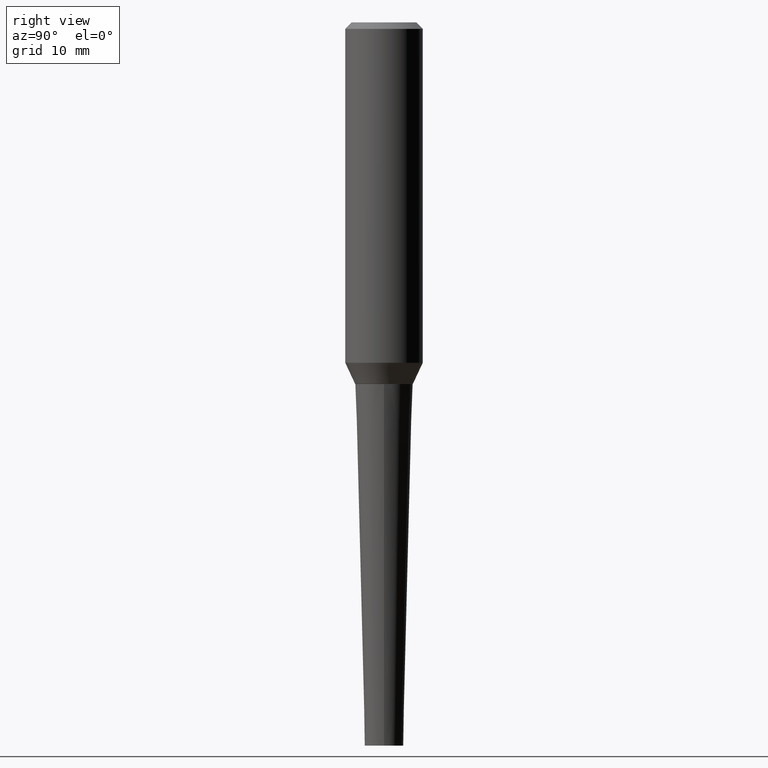
[diagram: clean part render]
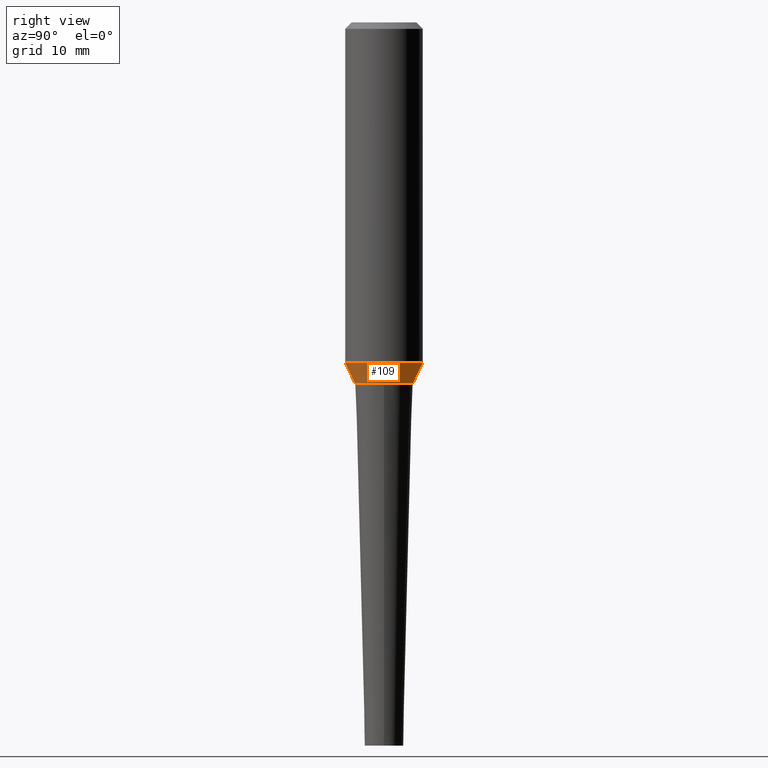
[diagram: same view with one face highlighted and labeled with its STEP entity id]
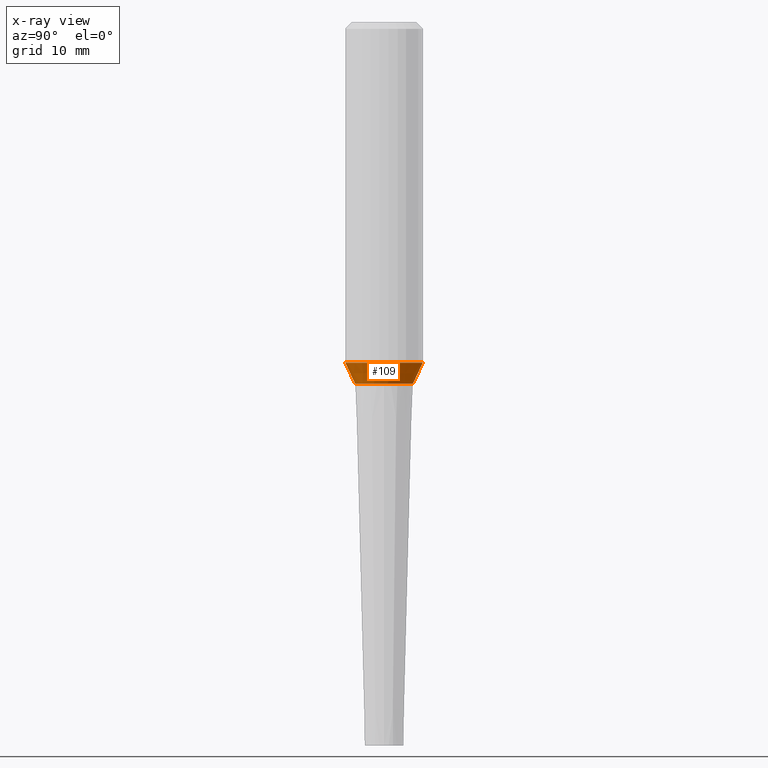
[diagram: x-ray of the same camera — body ghosted, the highlighted face saturated]
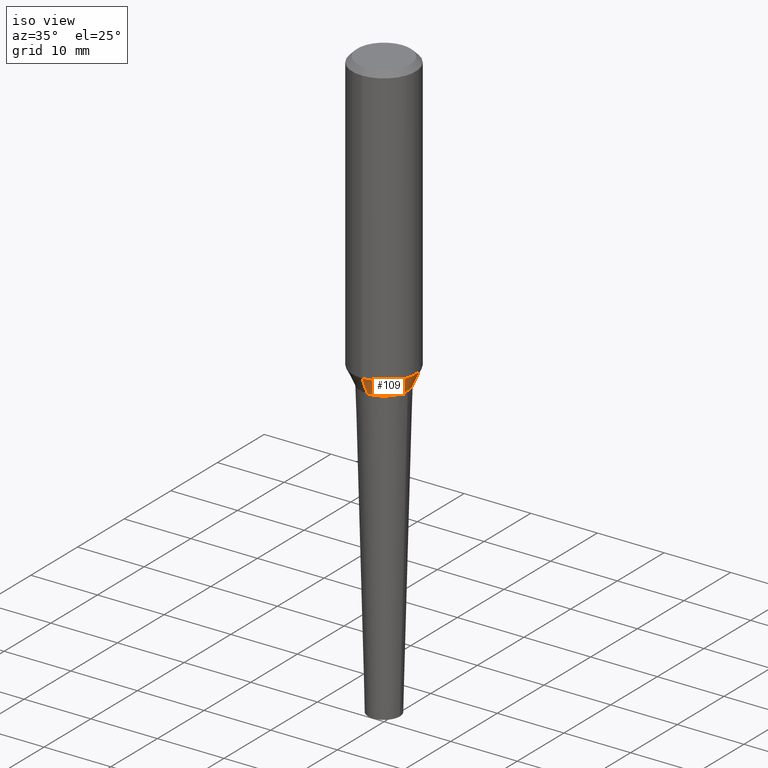
[diagram: same view with one face highlighted and labeled with its STEP entity id]
A machine part, right view. The second image highlights one B-rep face of the part: STEP entity #109.
The next image is the same camera in x-ray: the body ghosted, the highlighted face saturated — about 0% of this face is hidden behind the body in this view.
A second angle (iso view) of the same face is appended — the face is thin or edge-on in the first view.
In plain terms, the highlighted conical surface has half-angle 25 deg.
Its self-contained STEP definition (entity closure, byte-faithful):
#1 = DIRECTION ( 'NONE',  ( -2.680706346625087460E-29, 3.154607792043817320E-15, 1.000000000000000000 ) ) ;
#10 = DIRECTION ( 'NONE',  ( -2.680706346625087460E-29, 3.154607792043817320E-15, 1.000000000000000000 ) ) ;
#22 = EDGE_CURVE ( 'NONE', #273, #206, #286, .T. ) ;
#35 = LINE ( 'NONE', #253, #269 ) ;
#36 = VECTOR ( 'NONE', #256, 39.37007874015748143 ) ;
#44 = EDGE_CURVE ( 'NONE', #206, #182, #209, .T. ) ;
#64 = DIRECTION ( 'NONE',  ( -2.680706346625087460E-29, 3.154607792043817320E-15, 1.000000000000000000 ) ) ;
#69 = CIRCLE ( 'NONE', #347, 0.1400122321009284743 ) ;
#77 = EDGE_LOOP ( 'NONE', ( #115, #213, #278, #205 ) ) ;
#79 = CARTESIAN_POINT ( 'NONE',  ( -1.309305502066133790E-15, -0.1875000000000056066, -1.647225283746024838 ) ) ;
#99 = DIRECTION ( 'NONE',  ( -6.982962677686265922E-15, -1.000000000000000000, 3.902299038693987622E-15 ) ) ;
#109 = ADVANCED_FACE ( 'NONE', ( #377 ), #316, .T. ) ;
#115 = ORIENTED_EDGE ( 'NONE', *, *, #275, .T. ) ;
#133 = CARTESIAN_POINT ( 'NONE',  ( -9.777001911802870369E-16, -0.1400122321009344972, -1.749063130645135633 ) ) ;
#137 = EDGE_CURVE ( 'NONE', #374, #182, #35, .T. ) ;
#142 = CARTESIAN_POINT ( 'NONE',  ( 4.348926392121620079E-29, -6.004218604581146241E-15, -1.749063130645136077 ) ) ;
#164 = DIRECTION ( 'NONE',  ( -6.982962677686266711E-15, -1.000000000000000000, 2.913971193241881555E-15 ) ) ;
#182 = VERTEX_POINT ( 'NONE', #326 ) ;
#192 = AXIS2_PLACEMENT_3D ( 'NONE', #219, #1, #164 ) ;
#205 = ORIENTED_EDGE ( 'NONE', *, *, #22, .F. ) ;
#206 = VERTEX_POINT ( 'NONE', #79 ) ;
#209 = CIRCLE ( 'NONE', #192, 0.1874999999999999445 ) ;
#213 = ORIENTED_EDGE ( 'NONE', *, *, #137, .T. ) ;
#219 = CARTESIAN_POINT ( 'NONE',  ( 4.075929029612539620E-29, -5.682960139228246655E-15, -1.647225283746025504 ) ) ;
#222 = CARTESIAN_POINT ( 'NONE',  ( 4.348926392121620079E-29, -6.004218604581146241E-15, -1.749063130645136077 ) ) ;
#253 = CARTESIAN_POINT ( 'NONE',  ( 9.948467443687617652E-16, 0.1400122321009224513, -1.749063130645136743 ) ) ;
#256 = DIRECTION ( 'NONE',  ( -2.951127548643968161E-15, -0.4226182617406956665, 0.9063077870366517130 ) ) ;
#269 = VECTOR ( 'NONE', #350, 39.37007874015748854 ) ;
#273 = VERTEX_POINT ( 'NONE', #296 ) ;
#275 = EDGE_CURVE ( 'NONE', #273, #374, #69, .T. ) ;
#278 = ORIENTED_EDGE ( 'NONE', *, *, #44, .F. ) ;
#286 = LINE ( 'NONE', #133, #36 ) ;
#296 = CARTESIAN_POINT ( 'NONE',  ( -9.777001911802860508E-16, -0.1400122321009343862, -1.749063130645135633 ) ) ;
#316 = CONICAL_SURFACE ( 'NONE', #339, 0.1400122321009284743, 0.4363323129985814397 ) ;
#326 = CARTESIAN_POINT ( 'NONE',  ( 1.332267629550207373E-15, 0.1874999999999942824, -1.647225283746025948 ) ) ;
#339 = AXIS2_PLACEMENT_3D ( 'NONE', #222, #64, #99 ) ;
#347 = AXIS2_PLACEMENT_3D ( 'NONE', #142, #10, #355 ) ;
#350 = DIRECTION ( 'NONE',  ( 3.002883358794114662E-15, 0.4226182617407013842, 0.9063077870366489375 ) ) ;
#355 = DIRECTION ( 'NONE',  ( -6.982962677686265922E-15, -1.000000000000000000, 3.902299038693987622E-15 ) ) ;
#358 = CARTESIAN_POINT ( 'NONE',  ( 9.948467443687625541E-16, 0.1400122321009225623, -1.749063130645136743 ) ) ;
#374 = VERTEX_POINT ( 'NONE', #358 ) ;
#377 = FACE_OUTER_BOUND ( 'NONE', #77, .T. ) ;